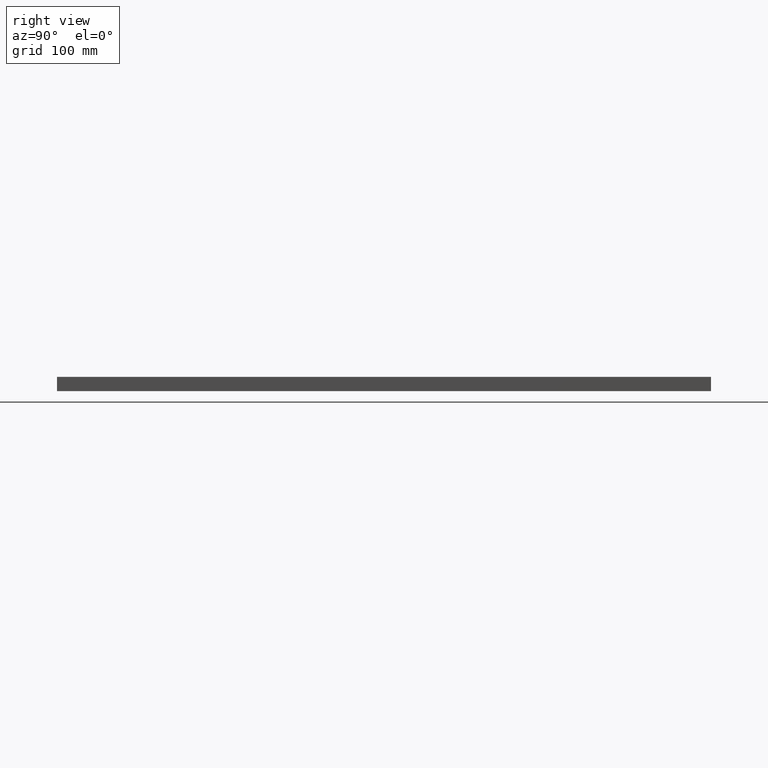
[diagram: clean part render]
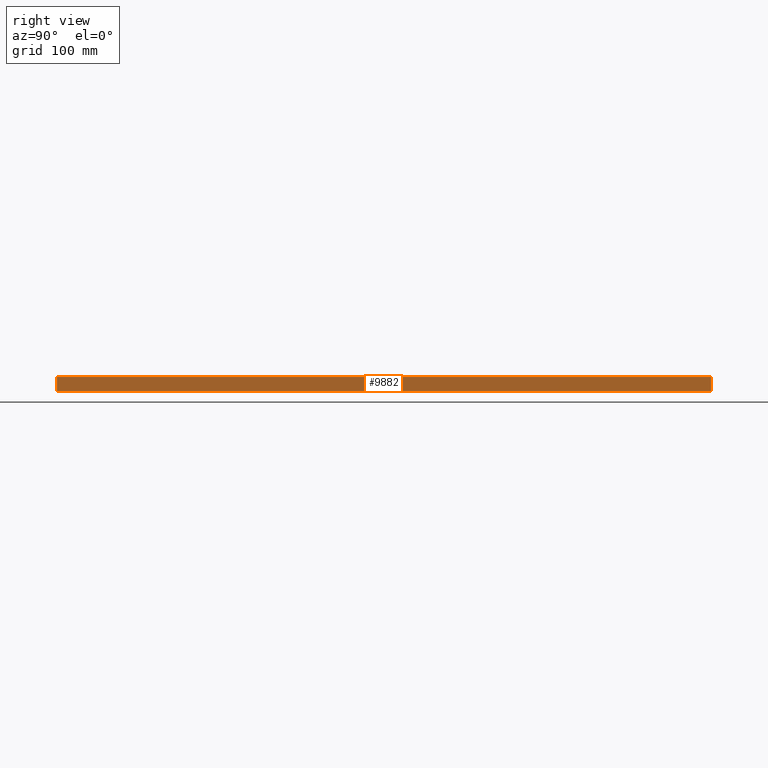
[diagram: same view with one face highlighted and labeled with its STEP entity id]
A machine part, right view. The second image highlights one B-rep face of the part: STEP entity #9882.
In plain terms, the highlighted planar face has unit normal (-1, -0, 0).
Its self-contained STEP definition (entity closure, byte-faithful):
#467 = EDGE_CURVE ( 'NONE', #1526, #11939, #4077, .T. ) ;
#783 = DIRECTION ( 'NONE',  ( 1.387778780781445900E-016, -1.000000000000000000, 0.0000000000000000000 ) ) ;
#1214 = LINE ( 'NONE', #14897, #7174 ) ;
#1526 = VERTEX_POINT ( 'NONE', #15097 ) ;
#1678 = CARTESIAN_POINT ( 'NONE',  ( 149.9999999999999100, 300.0000000000000600, 0.0000000000000000000 ) ) ;
#1997 = FACE_OUTER_BOUND ( 'NONE', #11249, .T. ) ;
#3264 = PLANE ( 'NONE',  #6917 ) ;
#3551 = ORIENTED_EDGE ( 'NONE', *, *, #467, .T. ) ;
#3784 = VECTOR ( 'NONE', #8820, 1000.000000000000000 ) ;
#4077 = LINE ( 'NONE', #15989, #13806 ) ;
#4548 = CARTESIAN_POINT ( 'NONE',  ( 149.9999999999999100, 300.0000000000000600, 13.00000000000000000 ) ) ;
#4596 = CARTESIAN_POINT ( 'NONE',  ( 149.9999999999999100, 300.0000000000000600, 0.0000000000000000000 ) ) ;
#4649 = DIRECTION ( 'NONE',  ( -1.387778780781445700E-016, 1.000000000000000000, -0.0000000000000000000 ) ) ;
#5346 = EDGE_CURVE ( 'NONE', #9424, #6175, #7565, .T. ) ;
#6072 = CARTESIAN_POINT ( 'NONE',  ( 149.9999999999999100, 300.0000000000000600, 13.00000000000000000 ) ) ;
#6175 = VERTEX_POINT ( 'NONE', #1678 ) ;
#6348 = LINE ( 'NONE', #4596, #12290 ) ;
#6917 = AXIS2_PLACEMENT_3D ( 'NONE', #14708, #8382, #783 ) ;
#7174 = VECTOR ( 'NONE', #11065, 1000.000000000000000 ) ;
#7565 = LINE ( 'NONE', #4548, #3784 ) ;
#8382 = DIRECTION ( 'NONE',  ( -1.000000000000000000, -1.387778780781445900E-016, 0.0000000000000000000 ) ) ;
#8820 = DIRECTION ( 'NONE',  ( -0.0000000000000000000, -0.0000000000000000000, -1.000000000000000000 ) ) ;
#9413 = EDGE_CURVE ( 'NONE', #1526, #9424, #1214, .T. ) ;
#9424 = VERTEX_POINT ( 'NONE', #6072 ) ;
#9882 = ADVANCED_FACE ( 'NONE', ( #1997 ), #3264, .F. ) ;
#10221 = ORIENTED_EDGE ( 'NONE', *, *, #13405, .T. ) ;
#10538 = ORIENTED_EDGE ( 'NONE', *, *, #9413, .F. ) ;
#10628 = ORIENTED_EDGE ( 'NONE', *, *, #5346, .F. ) ;
#10893 = DIRECTION ( 'NONE',  ( -0.0000000000000000000, -0.0000000000000000000, -1.000000000000000000 ) ) ;
#11065 = DIRECTION ( 'NONE',  ( -1.387778780781445700E-016, 1.000000000000000000, -0.0000000000000000000 ) ) ;
#11249 = EDGE_LOOP ( 'NONE', ( #10221, #10628, #10538, #3551 ) ) ;
#11939 = VERTEX_POINT ( 'NONE', #14926 ) ;
#12290 = VECTOR ( 'NONE', #4649, 1000.000000000000000 ) ;
#13405 = EDGE_CURVE ( 'NONE', #11939, #6175, #6348, .T. ) ;
#13806 = VECTOR ( 'NONE', #10893, 1000.000000000000000 ) ;
#14708 = CARTESIAN_POINT ( 'NONE',  ( 149.9999999999999100, 300.0000000000000600, 13.00000000000000000 ) ) ;
#14897 = CARTESIAN_POINT ( 'NONE',  ( 149.9999999999999100, 300.0000000000000600, 13.00000000000000000 ) ) ;
#14926 = CARTESIAN_POINT ( 'NONE',  ( 150.0000000000000000, -299.9999999999999400, 0.0000000000000000000 ) ) ;
#15097 = CARTESIAN_POINT ( 'NONE',  ( 150.0000000000000000, -299.9999999999999400, 13.00000000000000000 ) ) ;
#15989 = CARTESIAN_POINT ( 'NONE',  ( 150.0000000000000000, -299.9999999999999400, 13.00000000000000000 ) ) ;